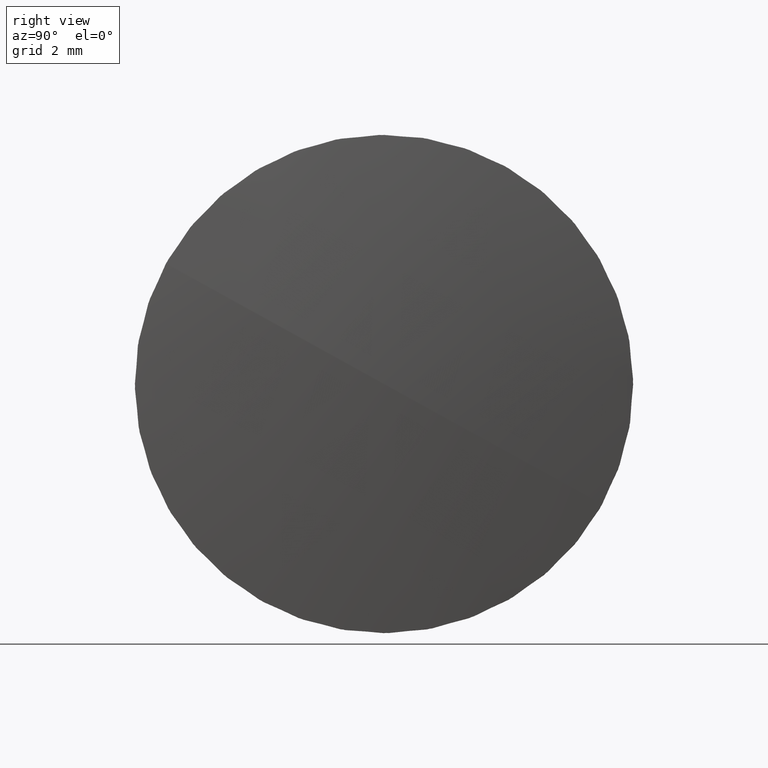
[diagram: clean part render]
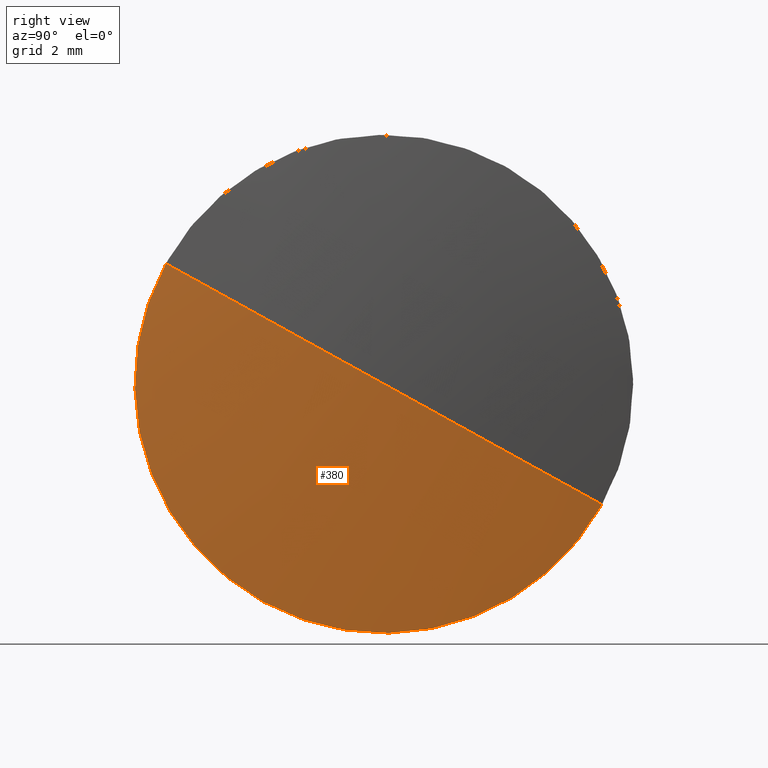
[diagram: same view with one face highlighted and labeled with its STEP entity id]
A machine part, right view. The second image highlights one B-rep face of the part: STEP entity #380.
In plain terms, the highlighted spherical surface has radius 52.14 mm.
Its self-contained STEP definition (entity closure, byte-faithful):
#5 = DIRECTION ( 'NONE',  ( 1.173094865929737913E-16, 0.4836518060285192044, 0.8752604929535846567 ) ) ;
#6 = SPHERICAL_SURFACE ( 'NONE', #271, 52.14000000000000767 ) ;
#11 = EDGE_CURVE ( 'NONE', #445, #209, #308, .T. ) ;
#31 = CARTESIAN_POINT ( 'NONE',  ( -63.20740906827801098, 8.303582838317279169, 3.071188968281062692 ) ) ;
#39 = ORIENTED_EDGE ( 'NONE', *, *, #291, .F. ) ;
#41 = CARTESIAN_POINT ( 'NONE',  ( -63.20740906827801098, 10.79029800029139530, -5.557904130255268527 ) ) ;
#45 = CARTESIAN_POINT ( 'NONE',  ( -63.20740906827801098, 19.41939109882771675, -3.071188968281085341 ) ) ;
#70 = AXIS2_PLACEMENT_3D ( 'NONE', #424, #115, #84 ) ;
#82 = DIRECTION ( 'NONE',  ( -1.173094865929737913E-16, -0.4836518060285191489, -0.8752604929535845457 ) ) ;
#84 = DIRECTION ( 'NONE',  ( 0.000000000000000000, 0.4836518060285191489, 0.8752604929535845457 ) ) ;
#93 = ORIENTED_EDGE ( 'NONE', *, *, #419, .F. ) ;
#103 = CIRCLE ( 'NONE', #180, 52.14000000000001478 ) ;
#115 = DIRECTION ( 'NONE',  ( -1.000000000000000000, 4.163336342344351818E-17, 1.110223024625159006E-16 ) ) ;
#118 = FACE_OUTER_BOUND ( 'NONE', #221, .T. ) ;
#143 = ORIENTED_EDGE ( 'NONE', *, *, #151, .F. ) ;
#151 = EDGE_CURVE ( 'NONE', #306, #396, #320, .T. ) ;
#180 = AXIS2_PLACEMENT_3D ( 'NONE', #185, #5, #216 ) ;
#182 = DIRECTION ( 'NONE',  ( 0.000000000000000000, 0.8752604929535845457, -0.4836518060285191489 ) ) ;
#185 = CARTESIAN_POINT ( 'NONE',  ( -114.9592892273601734, 13.86148696857249440, -8.064768495347047099E-16 ) ) ;
#202 = DIRECTION ( 'NONE',  ( 0.000000000000000000, 0.8752604929535845457, -0.4836518060285190379 ) ) ;
#209 = VERTEX_POINT ( 'NONE', #31 ) ;
#216 = DIRECTION ( 'NONE',  ( 0.000000000000000000, -0.8752604929535844347, 0.4836518060285190934 ) ) ;
#221 = EDGE_LOOP ( 'NONE', ( #39, #232, #93, #143 ) ) ;
#232 = ORIENTED_EDGE ( 'NONE', *, *, #11, .T. ) ;
#249 = CARTESIAN_POINT ( 'NONE',  ( -114.9592892273601734, 13.86148696857249440, -8.064768495347047099E-16 ) ) ;
#264 = DIRECTION ( 'NONE',  ( -1.000000000000000000, 4.163336342344351818E-17, 1.110223024625159006E-16 ) ) ;
#271 = AXIS2_PLACEMENT_3D ( 'NONE', #249, #82, #182 ) ;
#287 = DIRECTION ( 'NONE',  ( -1.173094865929737667E-16, -0.4836518060285189824, -0.8752604929535845457 ) ) ;
#291 = EDGE_CURVE ( 'NONE', #445, #306, #103, .T. ) ;
#301 = DIRECTION ( 'NONE',  ( 0.000000000000000000, 0.4836518060285191489, 0.8752604929535845457 ) ) ;
#306 = VERTEX_POINT ( 'NONE', #45 ) ;
#308 = CIRCLE ( 'NONE', #435, 52.14000000000000057 ) ;
#318 = CARTESIAN_POINT ( 'NONE',  ( -114.9592892273601734, 13.86148696857249440, -8.064768495347047099E-16 ) ) ;
#320 = CIRCLE ( 'NONE', #401, 6.349999999999999645 ) ;
#348 = CARTESIAN_POINT ( 'NONE',  ( -62.81928922736017284, 13.86148696857249440, -8.139312672385491349E-15 ) ) ;
#378 = CIRCLE ( 'NONE', #70, 6.349999999999999645 ) ;
#380 = ADVANCED_FACE ( 'NONE', ( #118 ), #6, .T. ) ;
#396 = VERTEX_POINT ( 'NONE', #41 ) ;
#401 = AXIS2_PLACEMENT_3D ( 'NONE', #443, #264, #301 ) ;
#419 = EDGE_CURVE ( 'NONE', #396, #209, #378, .T. ) ;
#424 = CARTESIAN_POINT ( 'NONE',  ( -63.20740906827801098, 13.86148696857249263, -6.552089741560200011E-15 ) ) ;
#435 = AXIS2_PLACEMENT_3D ( 'NONE', #318, #287, #202 ) ;
#443 = CARTESIAN_POINT ( 'NONE',  ( -63.20740906827801098, 13.86148696857249263, -6.552089741560200011E-15 ) ) ;
#445 = VERTEX_POINT ( 'NONE', #348 ) ;